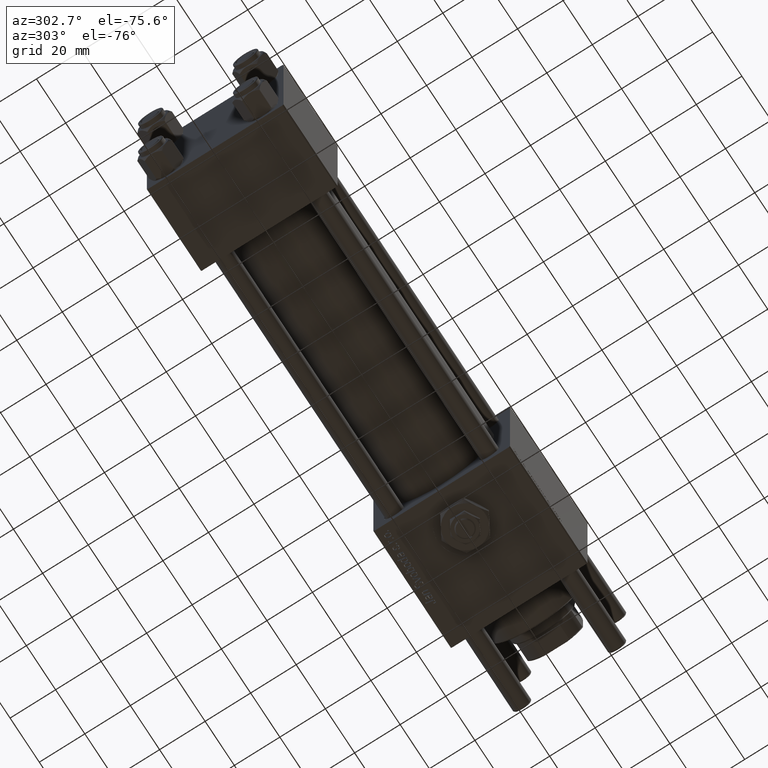
[diagram: clean part render]
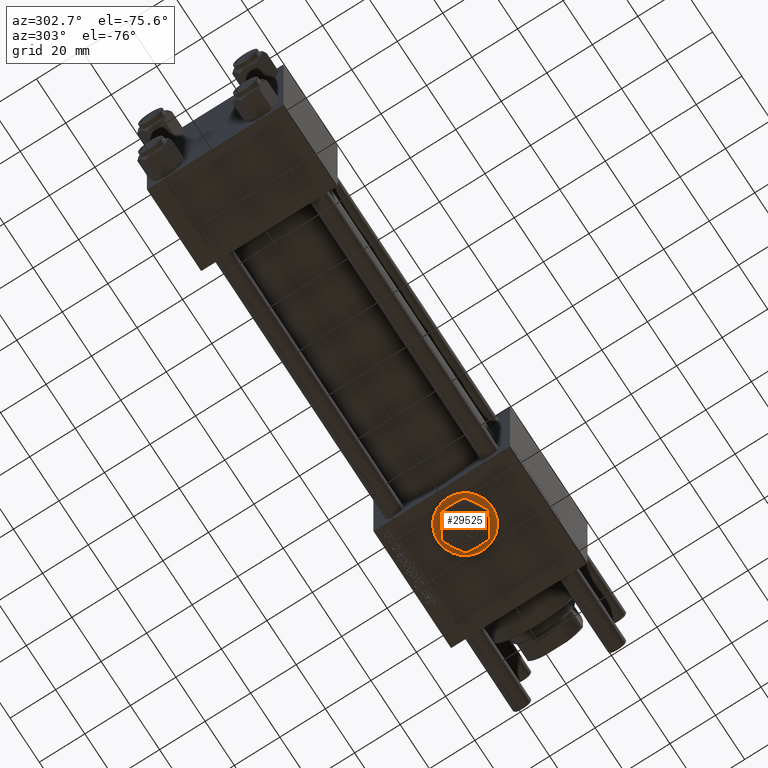
[diagram: same view with one face highlighted and labeled with its STEP entity id]
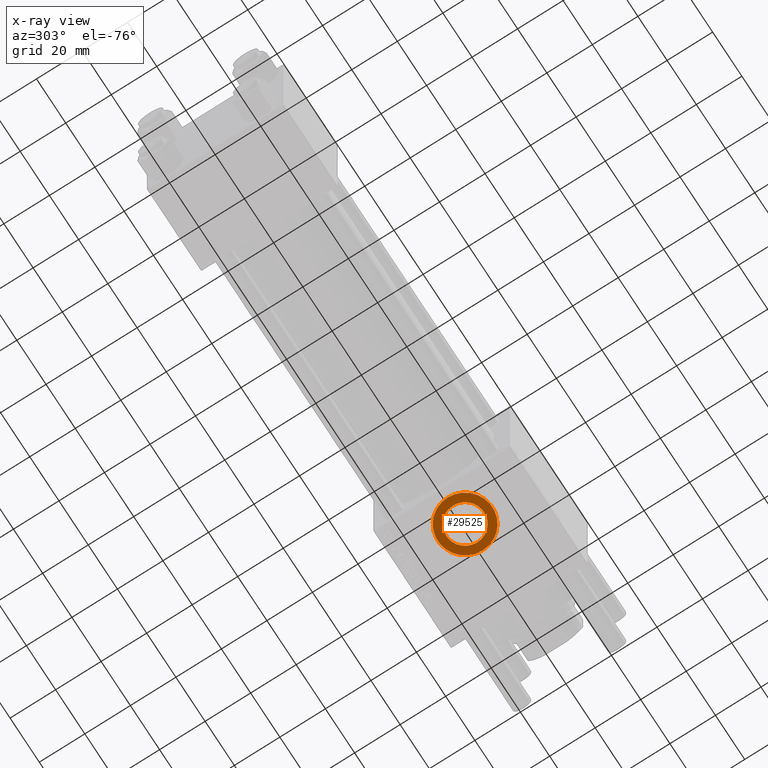
[diagram: x-ray of the same camera — body ghosted, the highlighted face saturated]
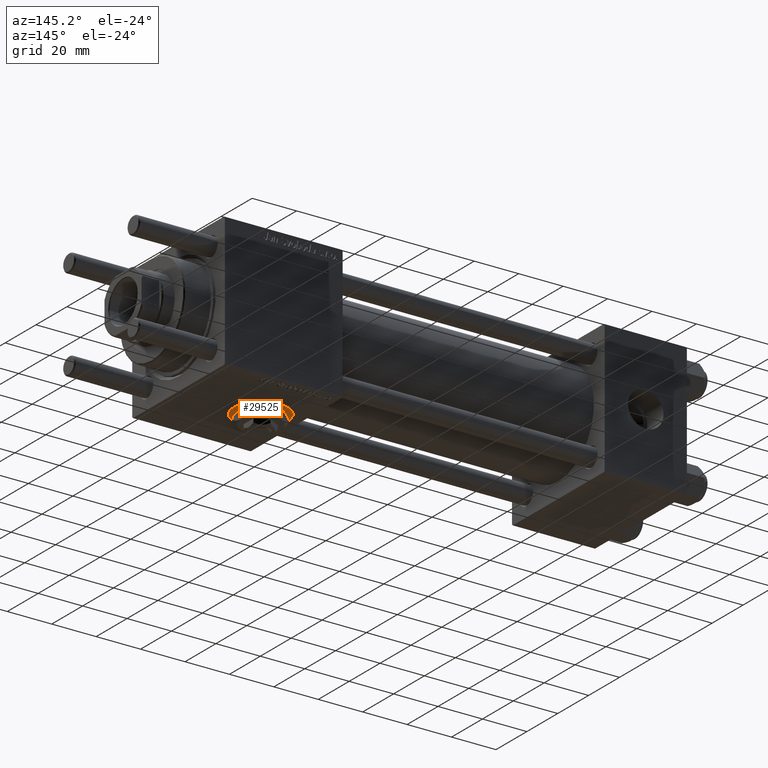
[diagram: same view with one face highlighted and labeled with its STEP entity id]
A machine part, auxiliary view. The second image highlights one B-rep face of the part: STEP entity #29525.
The next image is the same camera in x-ray: the body ghosted, the highlighted face saturated — about 0% of this face is hidden behind the body in this view.
A second angle (auxiliary view) of the same face is appended — the face is thin or edge-on in the first view.
In plain terms, the highlighted planar face has unit normal (0, 0, -1).
Its self-contained STEP definition (entity closure, byte-faithful):
#1592 = CARTESIAN_POINT ( 'NONE',  ( 170.9999999999999716, 3.469446951953613794E-15, -29.79999999999999716 ) ) ;
#1748 = DIRECTION ( 'NONE',  ( 0.000000000000000000, 0.000000000000000000, -1.000000000000000000 ) ) ;
#2261 = DIRECTION ( 'NONE',  ( 0.000000000000000000, 0.000000000000000000, -1.000000000000000000 ) ) ;
#3258 = VERTEX_POINT ( 'NONE', #26194 ) ;
#5592 = CARTESIAN_POINT ( 'NONE',  ( 170.9999999999999716, 3.469446951953613794E-15, -29.79999999999999716 ) ) ;
#6134 = CIRCLE ( 'NONE', #13707, 8.330000000000003624 ) ;
#6762 = ORIENTED_EDGE ( 'NONE', *, *, #49214, .F. ) ;
#8407 = EDGE_LOOP ( 'NONE', ( #16909, #45790 ) ) ;
#9057 = AXIS2_PLACEMENT_3D ( 'NONE', #22095, #22380, #17949 ) ;
#11867 = CIRCLE ( 'NONE', #23191, 12.00000000000001066 ) ;
#13660 = VERTEX_POINT ( 'NONE', #14503 ) ;
#13707 = AXIS2_PLACEMENT_3D ( 'NONE', #1592, #51339, #19658 ) ;
#14503 = CARTESIAN_POINT ( 'NONE',  ( 162.6699999999999875, 3.469446951953613794E-15, -29.79999999999999716 ) ) ;
#14717 = CIRCLE ( 'NONE', #55385, 8.330000000000003624 ) ;
#15891 = FACE_BOUND ( 'NONE', #41027, .T. ) ;
#16066 = AXIS2_PLACEMENT_3D ( 'NONE', #24183, #2261, #20326 ) ;
#16909 = ORIENTED_EDGE ( 'NONE', *, *, #27721, .T. ) ;
#17949 = DIRECTION ( 'NONE',  ( -1.000000000000000000, 0.000000000000000000, 0.000000000000000000 ) ) ;
#19658 = DIRECTION ( 'NONE',  ( -1.000000000000000000, 0.000000000000000000, 0.000000000000000000 ) ) ;
#20326 = DIRECTION ( 'NONE',  ( -1.000000000000000000, 0.000000000000000000, -0.000000000000000000 ) ) ;
#21357 = CIRCLE ( 'NONE', #9057, 12.00000000000001066 ) ;
#22095 = CARTESIAN_POINT ( 'NONE',  ( 170.9999999999999716, 3.469446951953613794E-15, -29.79999999999999716 ) ) ;
#22380 = DIRECTION ( 'NONE',  ( 0.000000000000000000, 0.000000000000000000, -1.000000000000000000 ) ) ;
#23191 = AXIS2_PLACEMENT_3D ( 'NONE', #5592, #1748, #41732 ) ;
#24183 = CARTESIAN_POINT ( 'NONE',  ( 170.9999999999999716, 3.469446951953613794E-15, -29.79999999999999716 ) ) ;
#24779 = FACE_OUTER_BOUND ( 'NONE', #8407, .T. ) ;
#26194 = CARTESIAN_POINT ( 'NONE',  ( 158.9999999999999716, 3.469446951953613794E-15, -29.79999999999999716 ) ) ;
#27158 = VERTEX_POINT ( 'NONE', #32105 ) ;
#27170 = CARTESIAN_POINT ( 'NONE',  ( 170.9999999999999716, 3.469446951953613794E-15, -29.79999999999999716 ) ) ;
#27721 = EDGE_CURVE ( 'NONE', #3258, #43849, #11867, .T. ) ;
#29525 = ADVANCED_FACE ( 'NONE', ( #15891, #24779 ), #30084, .T. ) ;
#30084 = PLANE ( 'NONE',  #16066 ) ;
#32105 = CARTESIAN_POINT ( 'NONE',  ( 179.3299999999999841, 4.489577735643358162E-15, -29.79999999999999716 ) ) ;
#39922 = CARTESIAN_POINT ( 'NONE',  ( 183.0000000000000000, 4.939023110930436756E-15, -29.79999999999999716 ) ) ;
#41027 = EDGE_LOOP ( 'NONE', ( #6762, #51430 ) ) ;
#41732 = DIRECTION ( 'NONE',  ( -1.000000000000000000, 0.000000000000000000, 0.000000000000000000 ) ) ;
#43849 = VERTEX_POINT ( 'NONE', #39922 ) ;
#44930 = DIRECTION ( 'NONE',  ( -1.000000000000000000, 0.000000000000000000, 0.000000000000000000 ) ) ;
#45790 = ORIENTED_EDGE ( 'NONE', *, *, #51442, .T. ) ;
#49214 = EDGE_CURVE ( 'NONE', #13660, #27158, #6134, .T. ) ;
#50018 = EDGE_CURVE ( 'NONE', #27158, #13660, #14717, .T. ) ;
#51339 = DIRECTION ( 'NONE',  ( 0.000000000000000000, 0.000000000000000000, -1.000000000000000000 ) ) ;
#51430 = ORIENTED_EDGE ( 'NONE', *, *, #50018, .F. ) ;
#51442 = EDGE_CURVE ( 'NONE', #43849, #3258, #21357, .T. ) ;
#54402 = DIRECTION ( 'NONE',  ( 0.000000000000000000, 0.000000000000000000, -1.000000000000000000 ) ) ;
#55385 = AXIS2_PLACEMENT_3D ( 'NONE', #27170, #54402, #44930 ) ;